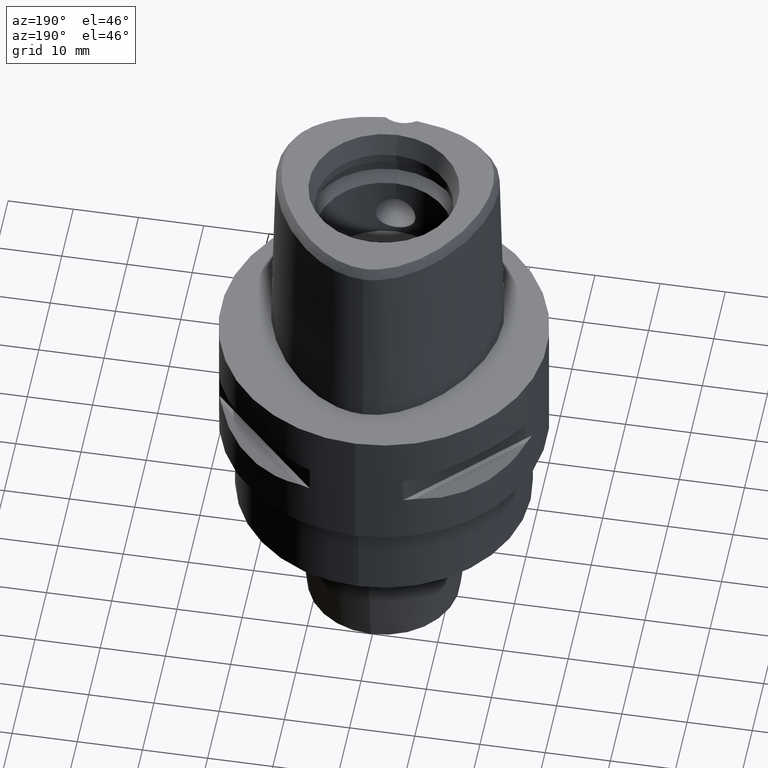
[diagram: clean part render]
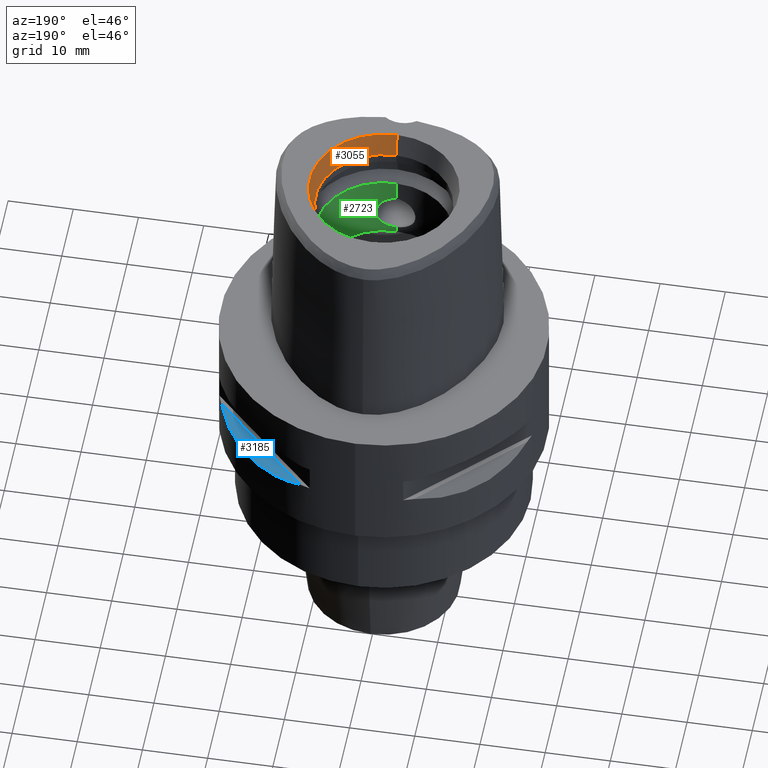
[diagram: same view with three faces highlighted in distinct colors, each labeled with its STEP entity id]
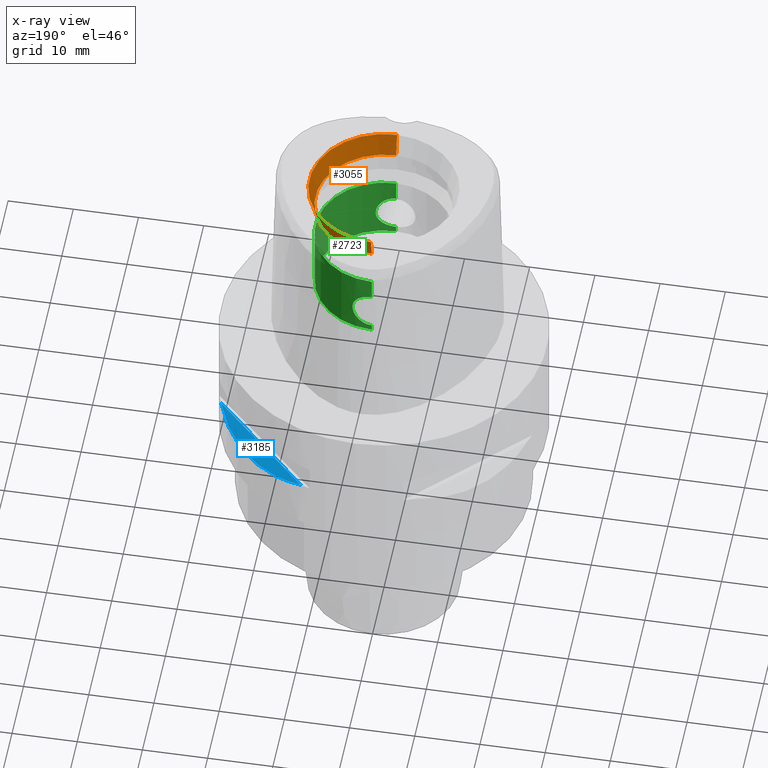
[diagram: x-ray of the same camera — body ghosted, the three highlighted faces saturated]
A machine part, auxiliary view with three faces highlighted in distinct colors.
The next image is the same camera in x-ray (body ghosted, the three faces saturated) — at least one of them is partly hidden behind the body in this view.
Their STEP definitions:

[orange] entity #3055 — the highlighted conical surface has half-angle 15 deg.
#123=CARTESIAN_POINT('',(0.E0,1.570609519906E-14,3.E1));
#124=DIRECTION('',(0.E0,0.E0,1.E0));
#125=DIRECTION('',(0.E0,-1.E0,0.E0));
#126=AXIS2_PLACEMENT_3D('',#123,#124,#125);
#1175=DIRECTION('',(0.E0,-2.588190451024E-1,9.659258262891E-1));
#1176=VECTOR('',#1175,3.623466631436E0);
#1177=CARTESIAN_POINT('',(0.E0,-1.05E1,2.65E1));
#1178=LINE('',#1177,#1176);
#1182=CARTESIAN_POINT('',(0.E0,1.570609519906E-14,2.65E1));
#1183=DIRECTION('',(0.E0,0.E0,1.E0));
#1184=DIRECTION('',(0.E0,-1.E0,0.E0));
#1185=AXIS2_PLACEMENT_3D('',#1182,#1183,#1184);
#1190=DIRECTION('',(0.E0,2.588190451024E-1,9.659258262891E-1));
#1191=VECTOR('',#1190,3.623466631436E0);
#1192=CARTESIAN_POINT('',(0.E0,1.05E1,2.65E1));
#1193=LINE('',#1192,#1191);
#1502=CARTESIAN_POINT('',(0.E0,1.143782217350E1,3.E1));
#1503=CARTESIAN_POINT('',(0.E0,-1.143782217350E1,3.E1));
#1504=VERTEX_POINT('',#1502);
#1505=VERTEX_POINT('',#1503);
#1656=CARTESIAN_POINT('',(0.E0,-1.05E1,2.65E1));
#1657=VERTEX_POINT('',#1656);
#1658=CARTESIAN_POINT('',(0.E0,1.05E1,2.65E1));
#1659=VERTEX_POINT('',#1658);
#3044=CARTESIAN_POINT('',(0.E0,1.570609519906E-14,2.825E1));
#3045=DIRECTION('',(0.E0,0.E0,1.E0));
#3046=DIRECTION('',(0.E0,1.E0,0.E0));
#3047=AXIS2_PLACEMENT_3D('',#3044,#3045,#3046);
#3048=CONICAL_SURFACE('',#3047,1.096891108675E1,1.5E1);
#3049=ORIENTED_EDGE('',*,*,#1675,.F.);
#3050=ORIENTED_EDGE('',*,*,#3039,.F.);
#3051=ORIENTED_EDGE('',*,*,#3012,.T.);
#3052=ORIENTED_EDGE('',*,*,#3036,.T.);
#3053=EDGE_LOOP('',(#3049,#3050,#3051,#3052));
#3054=FACE_OUTER_BOUND('',#3053,.F.);
#127=CIRCLE('',#126,1.143782217350E1);
#1186=CIRCLE('',#1185,1.05E1);
#1675=EDGE_CURVE('',#1505,#1504,#127,.T.);
#3012=EDGE_CURVE('',#1657,#1659,#1186,.T.);
#3036=EDGE_CURVE('',#1659,#1504,#1193,.T.);
#3039=EDGE_CURVE('',#1657,#1505,#1178,.T.);
#3055=ADVANCED_FACE('',(#3054),#3048,.F.);

[blue] entity #3185 — the highlighted planar face has unit normal (-0.3536, -0.3536, -0.866).
#490=CARTESIAN_POINT('',(2.345715880140E1,8.646484890752E0,-1.205E1));
#491=CARTESIAN_POINT('',(2.279233152396E1,1.045010326509E1,-1.251490951850E1));
#492=CARTESIAN_POINT('',(2.112432544032E1,1.371898848499E1,-1.316846568912E1));
#493=CARTESIAN_POINT('',(1.780567581317E1,1.780567581317E1,-1.348201576758E1));
#494=CARTESIAN_POINT('',(1.371898848499E1,2.112432544032E1,-1.316846568912E1));
#495=CARTESIAN_POINT('',(1.045010326509E1,2.279233152396E1,-1.251490951850E1));
#496=CARTESIAN_POINT('',(8.646484890752E0,2.345715880140E1,-1.205E1));
#1348=DIRECTION('',(-7.071067811865E-1,7.071067811865E-1,0.E0));
#1349=VECTOR('',#1348,2.094545591232E1);
#1350=CARTESIAN_POINT('',(2.345715880140E1,8.646484890754E0,-1.205E1));
#1351=LINE('',#1350,#1349);
#1572=CARTESIAN_POINT('',(2.345715880140E1,8.646484890757E0,-1.205E1));
#1573=VERTEX_POINT('',#1572);
#1574=VERTEX_POINT('',#496);
#3176=CARTESIAN_POINT('',(5.445220128277E0,2.665842356387E1,-1.205E1));
#3177=DIRECTION('',(-3.535533905933E-1,-3.535533905933E-1,-8.660254037844E-1));
#3178=DIRECTION('',(6.123724356958E-1,6.123724356958E-1,-5.E-1));
#3179=AXIS2_PLACEMENT_3D('',#3176,#3177,#3178);
#3180=PLANE('',#3179);
#3181=ORIENTED_EDGE('',*,*,#2386,.F.);
#3182=ORIENTED_EDGE('',*,*,#3169,.T.);
#3183=EDGE_LOOP('',(#3181,#3182));
#3184=FACE_OUTER_BOUND('',#3183,.F.);
#497=B_SPLINE_CURVE_WITH_KNOTS('',3,(#490,#491,#492,#493,#494,#495,#496),
.UNSPECIFIED.,.F.,.F.,(4,1,1,1,4),(0.E0,2.5E-1,5.E-1,7.5E-1,1.E0),
.UNSPECIFIED.);
#2386=EDGE_CURVE('',#1573,#1574,#497,.T.);
#3169=EDGE_CURVE('',#1573,#1574,#1351,.T.);
#3185=ADVANCED_FACE('',(#3184),#3180,.F.);

[green] entity #2723 — the highlighted cylindrical surface (partial cylindrical patch) has radius 10.5 mm, axis along (0, 0, -1).
#812=CARTESIAN_POINT('',(0.E0,1.610410540879E-14,1.E1));
#813=DIRECTION('',(0.E0,0.E0,-1.E0));
#814=DIRECTION('',(0.E0,1.E0,0.E0));
#815=AXIS2_PLACEMENT_3D('',#812,#813,#814);
#844=CARTESIAN_POINT('',(0.E0,1.05E1,1.095E1));
#845=CARTESIAN_POINT('',(2.462899423211E-1,1.05E1,1.095E1));
#846=CARTESIAN_POINT('',(7.250910931337E-1,1.048283816707E1,1.100837823883E1));
#847=CARTESIAN_POINT('',(1.409823925005E0,1.041197840239E1,1.126214272127E1));
#848=CARTESIAN_POINT('',(2.026072002861E0,1.030801984159E1,1.167996062549E1));
#849=CARTESIAN_POINT('',(2.528135546428E0,1.019431442490E1,1.223852142599E1));
#850=CARTESIAN_POINT('',(2.882754679136E0,1.009771419133E1,1.291375598844E1));
#851=CARTESIAN_POINT('',(3.057363286632E0,1.004505911589E1,1.363226188914E1));
#852=CARTESIAN_POINT('',(3.056487691237E0,1.004533260465E1,1.436920894285E1));
#853=CARTESIAN_POINT('',(2.886077945133E0,1.009668394877E1,1.507311546208E1));
#854=CARTESIAN_POINT('',(2.544540453481E0,1.019001766506E1,1.573580456506E1));
#855=CARTESIAN_POINT('',(2.053153451532E0,1.030258173890E1,1.629650661326E1));
#856=CARTESIAN_POINT('',(1.431422720546E0,1.040935195844E1,1.672839844318E1));
#857=CARTESIAN_POINT('',(7.294596767641E-1,1.048283287926E1,1.699165230430E1));
#858=CARTESIAN_POINT('',(2.472550892874E-1,1.05E1,1.705E1));
#859=CARTESIAN_POINT('',(0.E0,1.05E1,1.705E1));
#864=DIRECTION('',(0.E0,0.E0,1.E0));
#865=VECTOR('',#864,3.35E0);
#866=CARTESIAN_POINT('',(0.E0,1.05E1,1.705E1));
#867=LINE('',#866,#865);
#871=CARTESIAN_POINT('',(0.E0,-1.05E1,1.705E1));
#872=CARTESIAN_POINT('',(2.462849096066E-1,-1.05E1,1.705E1));
#873=CARTESIAN_POINT('',(7.250719005444E-1,-1.048283858087E1,1.699162309987E1));
#874=CARTESIAN_POINT('',(1.409753451431E0,-1.041198692699E1,1.673788858021E1));
#875=CARTESIAN_POINT('',(2.025975885999E0,-1.030803870394E1,1.632011877296E1));
#876=CARTESIAN_POINT('',(2.528059946441E0,-1.019433376474E1,1.576158994200E1));
#877=CARTESIAN_POINT('',(2.882724639162E0,-1.009772318531E1,1.508633463546E1));
#878=CARTESIAN_POINT('',(3.057367104441E0,-1.004505798697E1,1.436777280470E1));
#879=CARTESIAN_POINT('',(3.056480346997E0,-1.004533478655E1,1.363075632028E1));
#880=CARTESIAN_POINT('',(2.886096243828E0,-1.009667853696E1,1.292694999379E1));
#881=CARTESIAN_POINT('',(2.544588290620E0,-1.019000497677E1,1.226427097814E1));
#882=CARTESIAN_POINT('',(2.053258235622E0,-1.030256018172E1,1.170358781836E1));
#883=CARTESIAN_POINT('',(1.431514776886E0,-1.040934063478E1,1.127164264740E1));
#884=CARTESIAN_POINT('',(7.294755403796E-1,-1.048283309516E1,1.100834684314E1));
#885=CARTESIAN_POINT('',(2.472583668343E-1,-1.05E1,1.095E1));
#886=CARTESIAN_POINT('',(0.E0,-1.05E1,1.095E1));
#891=DIRECTION('',(0.E0,0.E0,1.E0));
#892=VECTOR('',#891,9.5E-1);
#893=CARTESIAN_POINT('',(0.E0,1.05E1,1.E1));
#894=LINE('',#893,#892);
#932=DIRECTION('',(0.E0,0.E0,1.E0));
#933=VECTOR('',#932,3.35E0);
#934=CARTESIAN_POINT('',(0.E0,-1.05E1,1.705E1));
#935=LINE('',#934,#933);
#959=DIRECTION('',(0.E0,0.E0,1.E0));
#960=VECTOR('',#959,9.5E-1);
#961=CARTESIAN_POINT('',(0.E0,-1.05E1,1.E1));
#962=LINE('',#961,#960);
#1068=CARTESIAN_POINT('',(0.E0,1.483659597167E-14,2.04E1));
#1069=DIRECTION('',(0.E0,0.E0,1.E0));
#1070=DIRECTION('',(0.E0,-1.E0,0.E0));
#1071=AXIS2_PLACEMENT_3D('',#1068,#1069,#1070);
#1627=CARTESIAN_POINT('',(0.E0,1.05E1,1.E1));
#1628=CARTESIAN_POINT('',(0.E0,-1.05E1,1.E1));
#1629=VERTEX_POINT('',#1627);
#1630=VERTEX_POINT('',#1628);
#1631=VERTEX_POINT('',#844);
#1632=VERTEX_POINT('',#859);
#1633=CARTESIAN_POINT('',(0.E0,1.05E1,2.04E1));
#1634=VERTEX_POINT('',#1633);
#1635=CARTESIAN_POINT('',(0.E0,-1.05E1,2.04E1));
#1636=VERTEX_POINT('',#1635);
#1637=CARTESIAN_POINT('',(0.E0,-1.05E1,1.705E1));
#1638=VERTEX_POINT('',#1637);
#1639=VERTEX_POINT('',#886);
#2701=CARTESIAN_POINT('',(0.E0,1.610410540879E-14,3.15E1));
#2702=DIRECTION('',(0.E0,0.E0,-1.E0));
#2703=DIRECTION('',(0.E0,-1.E0,0.E0));
#2704=AXIS2_PLACEMENT_3D('',#2701,#2702,#2703);
#2705=CYLINDRICAL_SURFACE('',#2704,1.05E1);
#2707=ORIENTED_EDGE('',*,*,#2706,.T.);
#2709=ORIENTED_EDGE('',*,*,#2708,.T.);
#2711=ORIENTED_EDGE('',*,*,#2710,.F.);
#2713=ORIENTED_EDGE('',*,*,#2712,.F.);
#2715=ORIENTED_EDGE('',*,*,#2714,.T.);
#2717=ORIENTED_EDGE('',*,*,#2716,.F.);
#2718=ORIENTED_EDGE('',*,*,#2690,.F.);
#2720=ORIENTED_EDGE('',*,*,#2719,.T.);
#2721=EDGE_LOOP('',(#2707,#2709,#2711,#2713,#2715,#2717,#2718,#2720));
#2722=FACE_OUTER_BOUND('',#2721,.F.);
#816=CIRCLE('',#815,1.05E1);
#860=B_SPLINE_CURVE_WITH_KNOTS('',3,(#844,#845,#846,#847,#848,#849,#850,#851,
#852,#853,#854,#855,#856,#857,#858,#859),.UNSPECIFIED.,.F.,.F.,(4,1,1,1,1,1,1,1,
1,1,1,1,1,4),(0.E0,7.692307692308E-2,1.538461538462E-1,2.307692307692E-1,
3.076923076923E-1,3.846153846154E-1,4.615384615385E-1,5.384615384615E-1,
6.153846153846E-1,6.923076923077E-1,7.692307692308E-1,8.461538461538E-1,
9.230769230769E-1,1.E0),.UNSPECIFIED.);
#887=B_SPLINE_CURVE_WITH_KNOTS('',3,(#871,#872,#873,#874,#875,#876,#877,#878,
#879,#880,#881,#882,#883,#884,#885,#886),.UNSPECIFIED.,.F.,.F.,(4,1,1,1,1,1,1,1,
1,1,1,1,1,4),(0.E0,7.692307692308E-2,1.538461538462E-1,2.307692307692E-1,
3.076923076923E-1,3.846153846154E-1,4.615384615385E-1,5.384615384615E-1,
6.153846153846E-1,6.923076923077E-1,7.692307692308E-1,8.461538461538E-1,
9.230769230769E-1,1.E0),.UNSPECIFIED.);
#1072=CIRCLE('',#1071,1.05E1);
#2690=EDGE_CURVE('',#1629,#1630,#816,.T.);
#2706=EDGE_CURVE('',#1631,#1632,#860,.T.);
#2708=EDGE_CURVE('',#1632,#1634,#867,.T.);
#2710=EDGE_CURVE('',#1636,#1634,#1072,.T.);
#2712=EDGE_CURVE('',#1638,#1636,#935,.T.);
#2714=EDGE_CURVE('',#1638,#1639,#887,.T.);
#2716=EDGE_CURVE('',#1630,#1639,#962,.T.);
#2719=EDGE_CURVE('',#1629,#1631,#894,.T.);
#2723=ADVANCED_FACE('',(#2722),#2705,.F.);